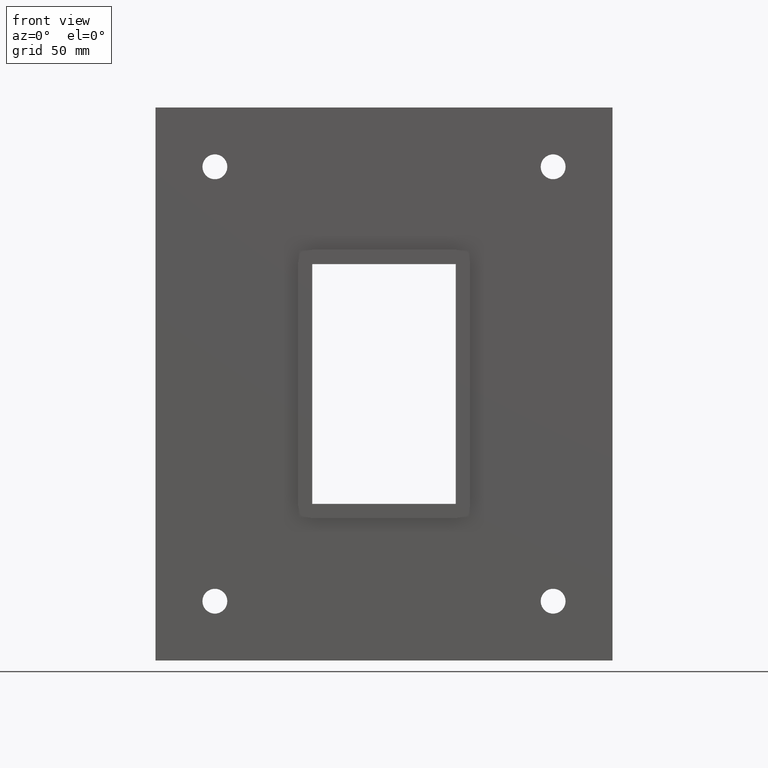
[diagram: clean part render]
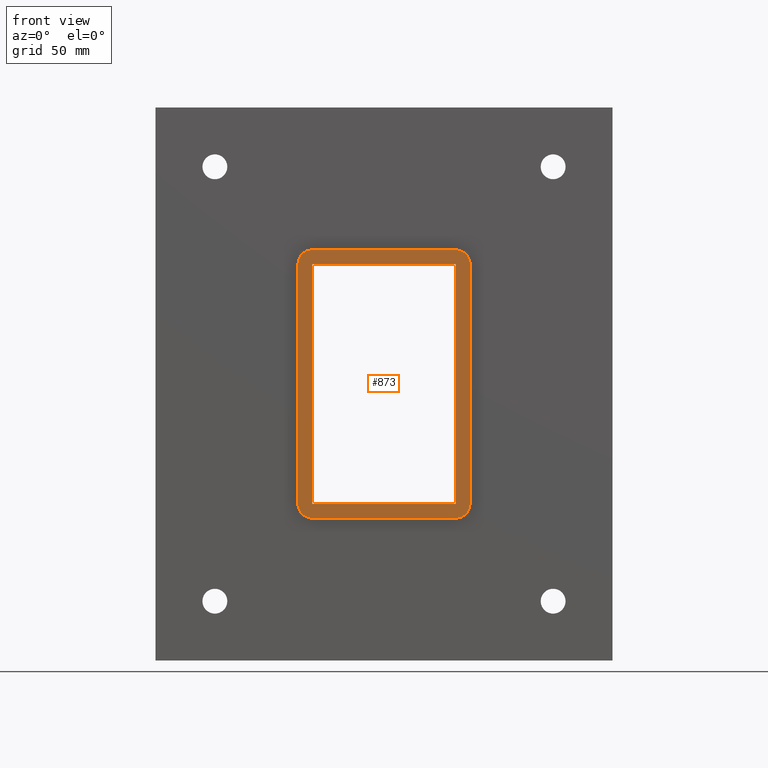
[diagram: same view with one face highlighted and labeled with its STEP entity id]
A machine part, front view. The second image highlights one B-rep face of the part: STEP entity #873.
In plain terms, the highlighted planar face has unit normal (0, 1, 0).
Its self-contained STEP definition (entity closure, byte-faithful):
#497=CARTESIAN_POINT('',(-30.249999999999986,-3.0,-50.500000000000043));
#498=VERTEX_POINT('',#497);
#515=CARTESIAN_POINT('',(-30.249999999999986,-3.0,50.500000000000007));
#516=VERTEX_POINT('',#515);
#523=CARTESIAN_POINT('',(-30.249999999999986,-3.0,-50.500000000000043));
#524=DIRECTION('',(0.0,0.0,1.0));
#525=VECTOR('',#524,101.00000000000006);
#526=LINE('',#523,#525);
#527=EDGE_CURVE('',#498,#516,#526,.T.);
#538=CARTESIAN_POINT('',(36.25,-3.0,-50.500000000000057));
#539=VERTEX_POINT('',#538);
#546=CARTESIAN_POINT('',(30.250000000000004,-3.0,-56.500000000000057));
#547=VERTEX_POINT('',#546);
#548=CARTESIAN_POINT('',(30.250000000000004,-3.0,-50.500000000000057));
#549=DIRECTION('',(0.0,1.0,0.0));
#550=DIRECTION('',(0.707106781186547,0.0,-0.707106781186547));
#551=AXIS2_PLACEMENT_3D('',#548,#549,#550);
#552=CIRCLE('',#551,6.0);
#553=EDGE_CURVE('',#539,#547,#552,.T.);
#603=CARTESIAN_POINT('',(-30.250000000000004,-3.0,-56.500000000000057));
#604=VERTEX_POINT('',#603);
#605=CARTESIAN_POINT('',(-30.25,-3.0,-56.500000000000057));
#606=DIRECTION('',(1.0,0.0,0.0));
#607=VECTOR('',#606,60.5);
#608=LINE('',#605,#607);
#609=EDGE_CURVE('',#604,#547,#608,.T.);
#650=CARTESIAN_POINT('',(36.25,-3.0,50.500000000000057));
#651=VERTEX_POINT('',#650);
#658=CARTESIAN_POINT('',(36.25,-3.0,-50.500000000000057));
#659=DIRECTION('',(0.0,0.0,1.0));
#660=VECTOR('',#659,101.00000000000011);
#661=LINE('',#658,#660);
#662=EDGE_CURVE('',#539,#651,#661,.T.);
#675=CARTESIAN_POINT('',(-36.25,-3.0,-50.500000000000057));
#676=VERTEX_POINT('',#675);
#677=CARTESIAN_POINT('',(-30.250000000000004,-3.0,-50.500000000000057));
#678=DIRECTION('',(0.0,1.0,0.0));
#679=DIRECTION('',(-0.707106781186547,0.0,-0.707106781186547));
#680=AXIS2_PLACEMENT_3D('',#677,#678,#679);
#681=CIRCLE('',#680,6.0);
#682=EDGE_CURVE('',#604,#676,#681,.T.);
#724=CARTESIAN_POINT('',(30.250000000000004,-3.0,56.500000000000057));
#725=VERTEX_POINT('',#724);
#732=CARTESIAN_POINT('',(30.250000000000004,-3.0,50.500000000000057));
#733=DIRECTION('',(0.0,1.0,0.0));
#734=DIRECTION('',(0.707106781186547,0.0,0.707106781186547));
#735=AXIS2_PLACEMENT_3D('',#732,#733,#734);
#736=CIRCLE('',#735,6.0);
#737=EDGE_CURVE('',#725,#651,#736,.T.);
#750=CARTESIAN_POINT('',(-36.25,-3.0,50.500000000000057));
#751=VERTEX_POINT('',#750);
#752=CARTESIAN_POINT('',(-36.25,-3.0,50.500000000000057));
#753=DIRECTION('',(0.0,0.0,-1.0));
#754=VECTOR('',#753,101.00000000000011);
#755=LINE('',#752,#754);
#756=EDGE_CURVE('',#751,#676,#755,.T.);
#797=CARTESIAN_POINT('',(-30.250000000000004,-3.0,56.500000000000057));
#798=VERTEX_POINT('',#797);
#805=CARTESIAN_POINT('',(30.25,-3.0,56.500000000000057));
#806=DIRECTION('',(-1.0,0.0,0.0));
#807=VECTOR('',#806,60.5);
#808=LINE('',#805,#807);
#809=EDGE_CURVE('',#725,#798,#808,.T.);
#822=CARTESIAN_POINT('',(-30.250000000000004,-3.0,50.500000000000057));
#823=DIRECTION('',(0.0,1.0,0.0));
#824=DIRECTION('',(-0.707106781186547,0.0,0.707106781186547));
#825=AXIS2_PLACEMENT_3D('',#822,#823,#824);
#826=CIRCLE('',#825,6.0);
#827=EDGE_CURVE('',#751,#798,#826,.T.);
#833=CARTESIAN_POINT('',(0.0,-3.0,0.0));
#834=DIRECTION('',(0.0,1.0,0.0));
#835=DIRECTION('',(0.0,0.0,1.0));
#836=AXIS2_PLACEMENT_3D('',#833,#834,#835);
#837=PLANE('',#836);
#838=ORIENTED_EDGE('',*,*,#682,.F.);
#839=ORIENTED_EDGE('',*,*,#609,.T.);
#840=ORIENTED_EDGE('',*,*,#553,.F.);
#841=ORIENTED_EDGE('',*,*,#662,.T.);
#842=ORIENTED_EDGE('',*,*,#737,.F.);
#843=ORIENTED_EDGE('',*,*,#809,.T.);
#844=ORIENTED_EDGE('',*,*,#827,.F.);
#845=ORIENTED_EDGE('',*,*,#756,.T.);
#846=EDGE_LOOP('',(#838,#839,#840,#841,#842,#843,#844,#845));
#847=FACE_OUTER_BOUND('',#846,.T.);
#848=CARTESIAN_POINT('',(30.249999999999986,-3.0,50.500000000000007));
#849=VERTEX_POINT('',#848);
#850=CARTESIAN_POINT('',(30.249999999999986,-3.0,-50.500000000000043));
#851=VERTEX_POINT('',#850);
#852=CARTESIAN_POINT('',(30.249999999999986,-3.0,50.500000000000007));
#853=DIRECTION('',(0.0,0.0,-1.0));
#854=VECTOR('',#853,101.00000000000006);
#855=LINE('',#852,#854);
#856=EDGE_CURVE('',#849,#851,#855,.T.);
#857=ORIENTED_EDGE('',*,*,#856,.T.);
#858=CARTESIAN_POINT('',(30.249999999999986,-3.0,-50.500000000000043));
#859=DIRECTION('',(-1.0,0.0,0.0));
#860=VECTOR('',#859,60.499999999999972);
#861=LINE('',#858,#860);
#862=EDGE_CURVE('',#851,#498,#861,.T.);
#863=ORIENTED_EDGE('',*,*,#862,.T.);
#864=ORIENTED_EDGE('',*,*,#527,.T.);
#865=CARTESIAN_POINT('',(-30.249999999999986,-3.0,50.499999999999972));
#866=DIRECTION('',(1.0,0.0,0.0));
#867=VECTOR('',#866,60.499999999999972);
#868=LINE('',#865,#867);
#869=EDGE_CURVE('',#516,#849,#868,.T.);
#870=ORIENTED_EDGE('',*,*,#869,.T.);
#871=EDGE_LOOP('',(#857,#863,#864,#870));
#872=FACE_BOUND('',#871,.T.);
#873=ADVANCED_FACE('',(#847,#872),#837,.F.);